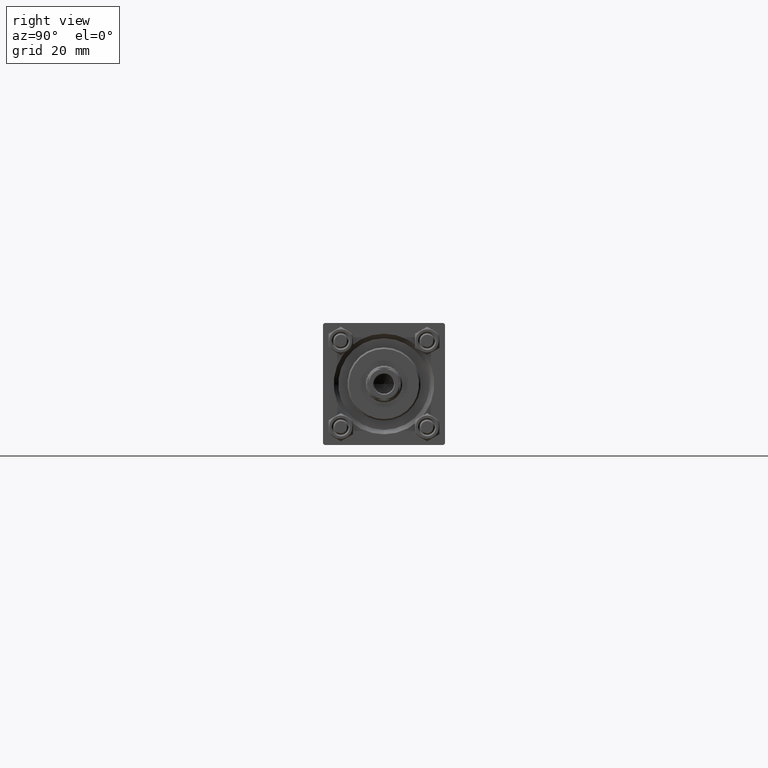
[diagram: clean part render]
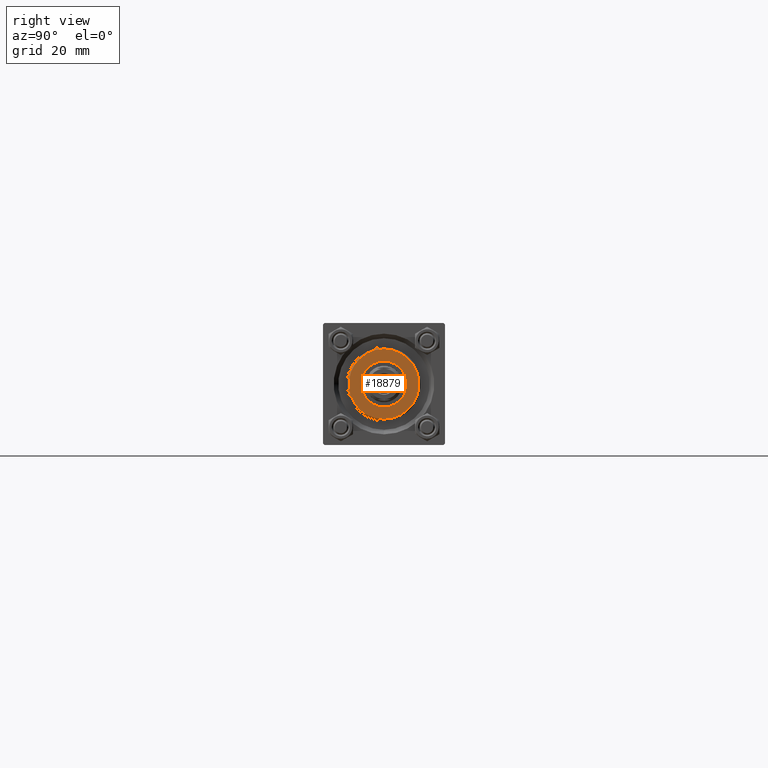
[diagram: same view with one face highlighted and labeled with its STEP entity id]
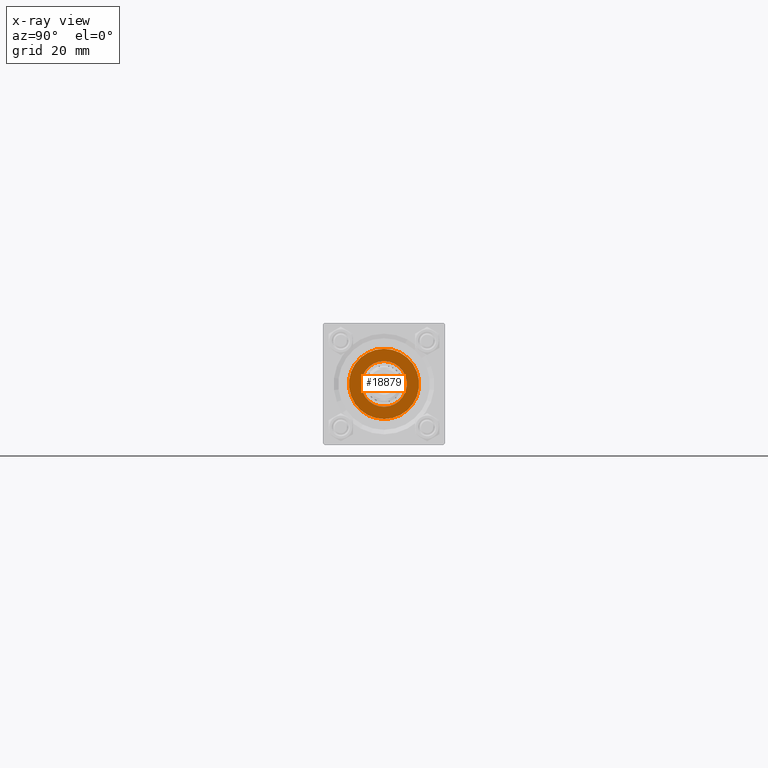
[diagram: x-ray of the same camera — body ghosted, the highlighted face saturated]
A machine part, right view. The second image highlights one B-rep face of the part: STEP entity #18879.
The next image is the same camera in x-ray: the body ghosted, the highlighted face saturated — about 0% of this face is hidden behind the body in this view.
In plain terms, the highlighted planar face has unit normal (1, 0, -0).
Its self-contained STEP definition (entity closure, byte-faithful):
#3239 = CIRCLE ( 'NONE', #4037, 11.49999999999999645 ) ;
#4037 = AXIS2_PLACEMENT_3D ( 'NONE', #25738, #44125, #33048 ) ;
#4114 = VERTEX_POINT ( 'NONE', #44300 ) ;
#4549 = DIRECTION ( 'NONE',  ( 1.000000000000000000, 0.000000000000000000, 0.000000000000000000 ) ) ;
#5575 = CIRCLE ( 'NONE', #45761, 11.49999999999999645 ) ;
#7028 = AXIS2_PLACEMENT_3D ( 'NONE', #16678, #12652, #40088 ) ;
#9507 = DIRECTION ( 'NONE',  ( 0.000000000000000000, 0.000000000000000000, 1.000000000000000000 ) ) ;
#12652 = DIRECTION ( 'NONE',  ( 0.000000000000000000, 0.000000000000000000, 1.000000000000000000 ) ) ;
#13799 = CARTESIAN_POINT ( 'NONE',  ( -7.500000000000000888, 9.184850993605149917E-16, 35.70000000000000284 ) ) ;
#14443 = VERTEX_POINT ( 'NONE', #13799 ) ;
#15621 = CIRCLE ( 'NONE', #35759, 7.500000000000000888 ) ;
#16368 = CARTESIAN_POINT ( 'NONE',  ( 0.000000000000000000, 0.000000000000000000, 35.70000000000000284 ) ) ;
#16569 = FACE_OUTER_BOUND ( 'NONE', #36381, .T. ) ;
#16678 = CARTESIAN_POINT ( 'NONE',  ( 0.000000000000000000, 0.000000000000000000, 35.70000000000000284 ) ) ;
#17491 = EDGE_LOOP ( 'NONE', ( #19684, #31012 ) ) ;
#18879 = ADVANCED_FACE ( 'NONE', ( #27656, #16569 ), #28644, .T. ) ;
#19684 = ORIENTED_EDGE ( 'NONE', *, *, #49761, .F. ) ;
#20104 = CARTESIAN_POINT ( 'NONE',  ( 0.000000000000000000, 0.000000000000000000, 35.70000000000000284 ) ) ;
#20769 = ORIENTED_EDGE ( 'NONE', *, *, #25070, .T. ) ;
#22596 = CARTESIAN_POINT ( 'NONE',  ( 0.000000000000000000, 0.000000000000000000, 35.70000000000000284 ) ) ;
#24864 = DIRECTION ( 'NONE',  ( 1.000000000000000000, 0.000000000000000000, -0.000000000000000000 ) ) ;
#25070 = EDGE_CURVE ( 'NONE', #39811, #4114, #5575, .T. ) ;
#25738 = CARTESIAN_POINT ( 'NONE',  ( 0.000000000000000000, 0.000000000000000000, 35.70000000000000284 ) ) ;
#26122 = DIRECTION ( 'NONE',  ( 1.000000000000000000, 0.000000000000000000, 0.000000000000000000 ) ) ;
#26876 = EDGE_CURVE ( 'NONE', #4114, #39811, #3239, .T. ) ;
#27656 = FACE_BOUND ( 'NONE', #17491, .T. ) ;
#27926 = CIRCLE ( 'NONE', #7028, 7.500000000000000888 ) ;
#28644 = PLANE ( 'NONE',  #43306 ) ;
#28750 = CARTESIAN_POINT ( 'NONE',  ( 7.500000000000000888, 0.000000000000000000, 35.70000000000000284 ) ) ;
#28797 = CARTESIAN_POINT ( 'NONE',  ( 11.49999999999999645, 1.438959988998139963E-15, 35.70000000000000284 ) ) ;
#31012 = ORIENTED_EDGE ( 'NONE', *, *, #42639, .F. ) ;
#33048 = DIRECTION ( 'NONE',  ( 1.000000000000000000, 0.000000000000000000, 0.000000000000000000 ) ) ;
#35759 = AXIS2_PLACEMENT_3D ( 'NONE', #22596, #45255, #26122 ) ;
#36284 = ORIENTED_EDGE ( 'NONE', *, *, #26876, .T. ) ;
#36381 = EDGE_LOOP ( 'NONE', ( #36284, #20769 ) ) ;
#39195 = VERTEX_POINT ( 'NONE', #28750 ) ;
#39811 = VERTEX_POINT ( 'NONE', #28797 ) ;
#40088 = DIRECTION ( 'NONE',  ( 1.000000000000000000, 0.000000000000000000, 0.000000000000000000 ) ) ;
#42639 = EDGE_CURVE ( 'NONE', #14443, #39195, #15621, .T. ) ;
#43306 = AXIS2_PLACEMENT_3D ( 'NONE', #20104, #9507, #24864 ) ;
#44125 = DIRECTION ( 'NONE',  ( 0.000000000000000000, 0.000000000000000000, 1.000000000000000000 ) ) ;
#44300 = CARTESIAN_POINT ( 'NONE',  ( -11.49999999999999645, 0.000000000000000000, 35.70000000000000284 ) ) ;
#45255 = DIRECTION ( 'NONE',  ( 0.000000000000000000, 0.000000000000000000, 1.000000000000000000 ) ) ;
#45761 = AXIS2_PLACEMENT_3D ( 'NONE', #16368, #46844, #4549 ) ;
#46844 = DIRECTION ( 'NONE',  ( 0.000000000000000000, 0.000000000000000000, 1.000000000000000000 ) ) ;
#49761 = EDGE_CURVE ( 'NONE', #39195, #14443, #27926, .T. ) ;